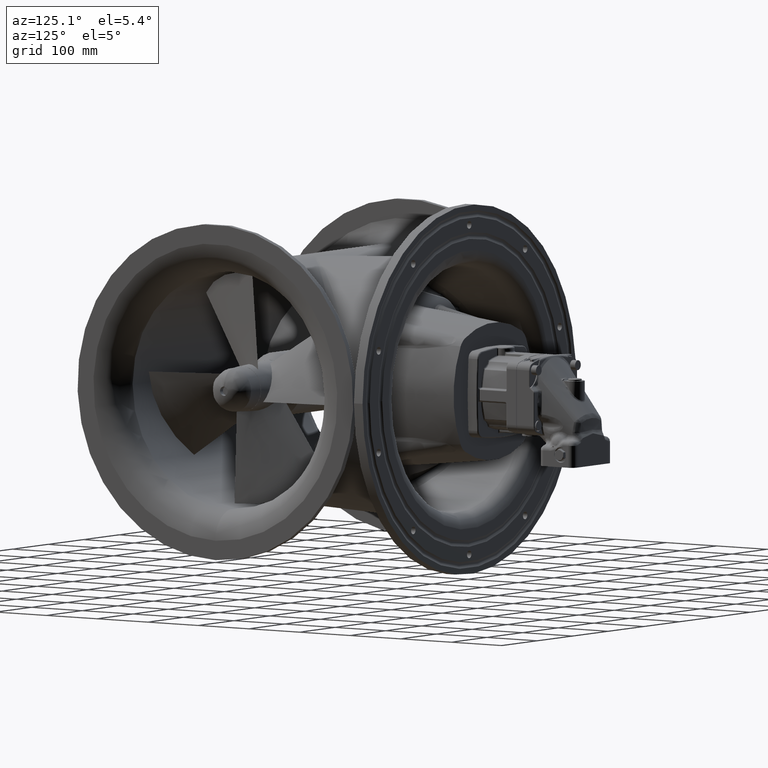
[diagram: clean part render]
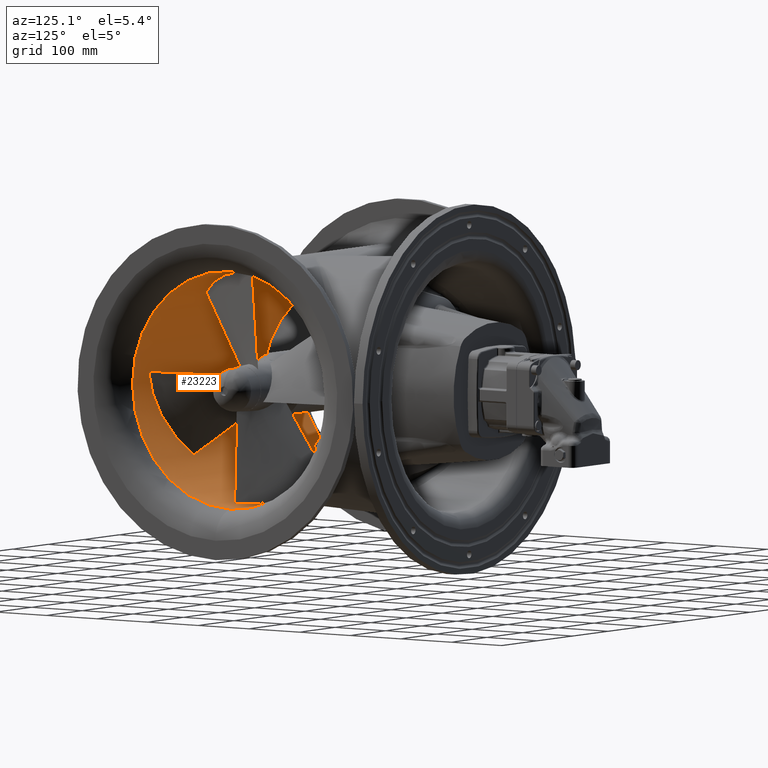
[diagram: same view with one face highlighted and labeled with its STEP entity id]
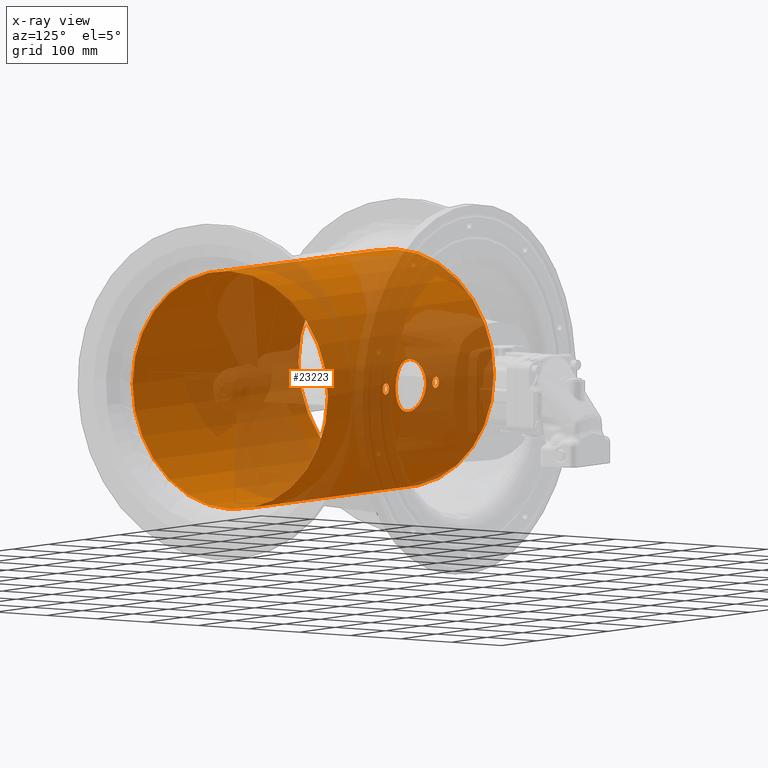
[diagram: x-ray of the same camera — body ghosted, the highlighted face saturated]
A machine part, auxiliary view. The second image highlights one B-rep face of the part: STEP entity #23223.
The next image is the same camera in x-ray: the body ghosted, the highlighted face saturated — about 55% of this face is hidden behind the body in this view.
In plain terms, the highlighted cylindrical surface (bore or boss wall) has radius 193 mm, axis along (1, 0, -0).
Its self-contained STEP definition (entity closure, byte-faithful):
#1314=CIRCLE('',#24668,193.);
#1315=CIRCLE('',#24669,193.);
#4619=FACE_BOUND('',#6252,.T.);
#4620=FACE_BOUND('',#6253,.T.);
#4621=FACE_BOUND('',#6254,.T.);
#4622=FACE_BOUND('',#6255,.T.);
#4799=FACE_OUTER_BOUND('',#6251,.T.);
#6251=EDGE_LOOP('',(#14808));
#6252=EDGE_LOOP('',(#14809));
#6253=EDGE_LOOP('',(#14810));
#6254=EDGE_LOOP('',(#14811));
#6255=EDGE_LOOP('',(#14812));
#7777=B_SPLINE_CURVE_WITH_KNOTS('',3,(#30942,#30943,#30944,#30945,#30946,
#30947,#30948,#30949,#30950,#30951,#30952,#30953,#30954,#30955,#30956,#30957,
#30958,#30959,#30960,#30961,#30962,#30963,#30964,#30965,#30966,#30967,#30968,
#30969,#30970,#30971,#30972,#30973,#30974,#30975,#30976,#30977,#30978,#30979,
#30980,#30981,#30982,#30983,#30984,#30985,#30986,#30987,#30988,#30989,#30990,
#30991,#30992,#30993,#30994,#30995,#30996,#30997,#30998,#30999,#31000,#31001,
#31002,#31003,#31004,#31005,#31006,#31007),.UNSPECIFIED.,.T.,.F.,(4,2,2,
2,2,2,2,2,2,2,2,2,2,2,2,2,2,2,2,2,2,2,2,2,2,2,2,2,2,2,2,2,4),(-25.7055913179414,
-24.9022582402887,-24.0989251626359,-23.2955920849832,-22.4922590073304,
-21.6889926276118,-20.8857262478932,-20.0824598681747,-19.2791934884561,
-18.4759271087375,-17.6726607290189,-16.8693943493003,-16.0661279695818,
-15.262794891929,-14.4594618142762,-13.6561287366235,-12.8527956589707,
-12.049462581318,-11.2461295036652,-10.4427964260124,-9.63946334835969,
-8.83619696864111,-8.03293058892253,-7.22966420920394,-6.42639782948536,
-5.62313144976678,-4.8198650700482,-4.01659869032962,-3.21333231061104,
-2.40999923295828,-1.60666615530552,-0.80333307765276,0.),.UNSPECIFIED.);
#7779=B_SPLINE_CURVE_WITH_KNOTS('',3,(#31085,#31086,#31087,#31088,#31089,
#31090,#31091,#31092,#31093,#31094,#31095,#31096,#31097,#31098,#31099,#31100,
#31101,#31102,#31103,#31104,#31105,#31106,#31107,#31108,#31109,#31110,#31111,
#31112,#31113,#31114,#31115,#31116,#31117,#31118),.UNSPECIFIED.,.T.,.F.,
(4,2,2,2,2,2,2,2,2,2,2,2,2,2,2,2,4),(-5.42513223136547,-5.08606143981724,
-4.746990648269,-4.40791991089655,-4.06884917352411,-3.72977843615166,-3.39070769877921,
-3.05163690723097,-2.71256611568274,-2.3734953241345,-2.03442453258627,
-1.69535379521382,-1.35628305784137,-1.01721232046892,-0.678141583096472,
-0.339070791548236,0.),.UNSPECIFIED.);
#7781=B_SPLINE_CURVE_WITH_KNOTS('',3,(#31172,#31173,#31174,#31175,#31176,
#31177,#31178,#31179,#31180,#31181,#31182,#31183,#31184,#31185,#31186,#31187,
#31188,#31189,#31190,#31191,#31192,#31193,#31194,#31195,#31196,#31197,#31198,
#31199,#31200,#31201,#31202,#31203,#31204,#31205),.UNSPECIFIED.,.T.,.F.,
(4,2,2,2,2,2,2,2,2,2,2,2,2,2,2,2,4),(-5.42513223136547,-5.08606143981724,
-4.746990648269,-4.40791991089655,-4.0688491735241,-3.72977843615166,-3.39070769877921,
-3.05163690723097,-2.71256611568273,-2.3734953241345,-2.03442453258626,
-1.69535379521382,-1.35628305784137,-1.01721232046892,-0.678141583096472,
-0.339070791548236,0.),.UNSPECIFIED.);
#9083=VERTEX_POINT('',#30941);
#9089=VERTEX_POINT('',#31084);
#9099=VERTEX_POINT('',#31171);
#9139=VERTEX_POINT('',#33053);
#9140=VERTEX_POINT('',#33055);
#11262=EDGE_CURVE('',#9083,#9083,#7777,.T.);
#11268=EDGE_CURVE('',#9089,#9089,#7779,.T.);
#11278=EDGE_CURVE('',#9099,#9099,#7781,.T.);
#11328=EDGE_CURVE('',#9139,#9139,#1314,.T.);
#11329=EDGE_CURVE('',#9140,#9140,#1315,.T.);
#14808=ORIENTED_EDGE('',*,*,#11328,.F.);
#14809=ORIENTED_EDGE('',*,*,#11262,.T.);
#14810=ORIENTED_EDGE('',*,*,#11268,.T.);
#14811=ORIENTED_EDGE('',*,*,#11278,.T.);
#14812=ORIENTED_EDGE('',*,*,#11329,.F.);
#21543=CYLINDRICAL_SURFACE('',#24667,193.);
#23223=ADVANCED_FACE('',(#4799,#4619,#4620,#4621,#4622),#21543,.F.);
#24667=AXIS2_PLACEMENT_3D('',#33052,#26377,#26378);
#24668=AXIS2_PLACEMENT_3D('',#33054,#26379,#26380);
#24669=AXIS2_PLACEMENT_3D('',#33056,#26381,#26382);
#26377=DIRECTION('center_axis',(1.,2.75075785414574E-15,-9.97823151778132E-16));
#26378=DIRECTION('ref_axis',(9.97823151778074E-16,2.09740053427586E-14,
1.));
#26379=DIRECTION('center_axis',(1.,2.75075785414574E-15,-9.97823151778132E-16));
#26380=DIRECTION('ref_axis',(9.97823151778074E-16,2.09740053427586E-14,
1.));
#26381=DIRECTION('center_axis',(-1.,-2.75075785414574E-15,9.97823151778132E-16));
#26382=DIRECTION('ref_axis',(9.97823151778074E-16,2.09740053427586E-14,
1.));
#30941=CARTESIAN_POINT('',(-619.546366145328,939.553945478175,328.588403940121));
#30942=CARTESIAN_POINT('Ctrl Pts',(-619.546366145328,939.553945478175,328.588403940121));
#30943=CARTESIAN_POINT('Ctrl Pts',(-616.868589219819,939.553945478175,328.588403940121));
#30944=CARTESIAN_POINT('Ctrl Pts',(-614.102275100437,939.612625477419,328.331248415781));
#30945=CARTESIAN_POINT('Ctrl Pts',(-608.605191336822,939.851616349016,327.251333023092));
#30946=CARTESIAN_POINT('Ctrl Pts',(-605.874361732409,940.031737914959,326.42883650021));
#30947=CARTESIAN_POINT('Ctrl Pts',(-600.641546121056,940.482794212036,324.257528184212));
#30948=CARTESIAN_POINT('Ctrl Pts',(-598.135224464312,940.753643162252,322.90699040238));
#30949=CARTESIAN_POINT('Ctrl Pts',(-593.502488344195,941.332943556501,319.789468114751));
#30950=CARTESIAN_POINT('Ctrl Pts',(-591.37614834929,941.640800695518,318.02226254494));
#30951=CARTESIAN_POINT('Ctrl Pts',(-587.612663781472,942.234049002433,314.258777977122));
#30952=CARTESIAN_POINT('Ctrl Pts',(-585.845475689229,942.540423836349,312.132510645058));
#30953=CARTESIAN_POINT('Ctrl Pts',(-582.727883446232,943.114338875342,307.49972906125));
#30954=CARTESIAN_POINT('Ctrl Pts',(-581.377265598838,943.38132002564,304.993289378095));
#30955=CARTESIAN_POINT('Ctrl Pts',(-579.20586845908,943.824547709456,299.760243097078));
#30956=CARTESIAN_POINT('Ctrl Pts',(-578.383363357496,944.000771281264,297.029304347796));
#30957=CARTESIAN_POINT('Ctrl Pts',(-577.303481724878,944.234319823351,291.532190865424));
#30958=CARTESIAN_POINT('Ctrl Pts',(-577.046366145328,944.291495690651,288.765958539183));
#30959=CARTESIAN_POINT('Ctrl Pts',(-577.046366145328,944.291495690651,283.410849341059));
#30960=CARTESIAN_POINT('Ctrl Pts',(-577.303481724878,944.234319823351,280.644617014818));
#30961=CARTESIAN_POINT('Ctrl Pts',(-578.383363357496,944.000771281264,275.147503532446));
#30962=CARTESIAN_POINT('Ctrl Pts',(-579.20586845908,943.824547709456,272.416564783164));
#30963=CARTESIAN_POINT('Ctrl Pts',(-581.377265598838,943.381320025639,267.183518502147));
#30964=CARTESIAN_POINT('Ctrl Pts',(-582.727883446232,943.114338875341,264.677078818992));
#30965=CARTESIAN_POINT('Ctrl Pts',(-585.845475689229,942.540423836348,260.044297235184));
#30966=CARTESIAN_POINT('Ctrl Pts',(-587.612663781472,942.234049002432,257.91802990312));
#30967=CARTESIAN_POINT('Ctrl Pts',(-591.37614834929,941.640800695517,254.154545335302));
#30968=CARTESIAN_POINT('Ctrl Pts',(-593.502488344195,941.3329435565,252.387339765491));
#30969=CARTESIAN_POINT('Ctrl Pts',(-598.135224464312,940.75364316225,249.269817477862));
#30970=CARTESIAN_POINT('Ctrl Pts',(-600.641546121056,940.482794212034,247.919279696031));
#30971=CARTESIAN_POINT('Ctrl Pts',(-605.874361732409,940.031737914957,245.747971380033));
#30972=CARTESIAN_POINT('Ctrl Pts',(-608.605191336822,939.851616349015,244.925474857151));
#30973=CARTESIAN_POINT('Ctrl Pts',(-614.102275100437,939.612625477417,243.845559464461));
#30974=CARTESIAN_POINT('Ctrl Pts',(-616.868589219819,939.553945478174,243.588403940121));
#30975=CARTESIAN_POINT('Ctrl Pts',(-622.224143070837,939.553945478174,243.588403940121));
#30976=CARTESIAN_POINT('Ctrl Pts',(-624.990457190219,939.612625477417,243.845559464461));
#30977=CARTESIAN_POINT('Ctrl Pts',(-630.487540953833,939.851616349015,244.925474857151));
#30978=CARTESIAN_POINT('Ctrl Pts',(-633.218370558246,940.031737914957,245.747971380033));
#30979=CARTESIAN_POINT('Ctrl Pts',(-638.451186169599,940.482794212034,247.919279696031));
#30980=CARTESIAN_POINT('Ctrl Pts',(-640.957507826344,940.75364316225,249.269817477862));
#30981=CARTESIAN_POINT('Ctrl Pts',(-645.590243946461,941.3329435565,252.387339765491));
#30982=CARTESIAN_POINT('Ctrl Pts',(-647.716583941366,941.640800695517,254.154545335302));
#30983=CARTESIAN_POINT('Ctrl Pts',(-651.480068509184,942.234049002431,257.91802990312));
#30984=CARTESIAN_POINT('Ctrl Pts',(-653.247256601427,942.540423836348,260.044297235184));
#30985=CARTESIAN_POINT('Ctrl Pts',(-656.364848844423,943.114338875341,264.677078818992));
#30986=CARTESIAN_POINT('Ctrl Pts',(-657.715466691818,943.381320025639,267.183518502147));
#30987=CARTESIAN_POINT('Ctrl Pts',(-659.886863831576,943.824547709456,272.416564783165));
#30988=CARTESIAN_POINT('Ctrl Pts',(-660.709368933159,944.000771281264,275.147503532446));
#30989=CARTESIAN_POINT('Ctrl Pts',(-661.789250565778,944.23431982335,280.644617014818));
#30990=CARTESIAN_POINT('Ctrl Pts',(-662.046366145328,944.29149569065,283.410849341059));
#30991=CARTESIAN_POINT('Ctrl Pts',(-662.046366145328,944.291495690651,288.765958539183));
#30992=CARTESIAN_POINT('Ctrl Pts',(-661.789250565778,944.234319823351,291.532190865424));
#30993=CARTESIAN_POINT('Ctrl Pts',(-660.709368933159,944.000771281264,297.029304347796));
#30994=CARTESIAN_POINT('Ctrl Pts',(-659.886863831576,943.824547709456,299.760243097078));
#30995=CARTESIAN_POINT('Ctrl Pts',(-657.715466691818,943.38132002564,304.993289378096));
#30996=CARTESIAN_POINT('Ctrl Pts',(-656.364848844423,943.114338875342,307.49972906125));
#30997=CARTESIAN_POINT('Ctrl Pts',(-653.247256601426,942.540423836349,312.132510645058));
#30998=CARTESIAN_POINT('Ctrl Pts',(-651.480068509184,942.234049002433,314.258777977122));
#30999=CARTESIAN_POINT('Ctrl Pts',(-647.716583941366,941.640800695518,318.02226254494));
#31000=CARTESIAN_POINT('Ctrl Pts',(-645.590243946461,941.332943556501,319.789468114751));
#31001=CARTESIAN_POINT('Ctrl Pts',(-640.957507826344,940.753643162252,322.90699040238));
#31002=CARTESIAN_POINT('Ctrl Pts',(-638.451186169599,940.482794212035,324.257528184212));
#31003=CARTESIAN_POINT('Ctrl Pts',(-633.218370558246,940.031737914959,326.42883650021));
#31004=CARTESIAN_POINT('Ctrl Pts',(-630.487540953833,939.851616349016,327.251333023092));
#31005=CARTESIAN_POINT('Ctrl Pts',(-624.990457190219,939.612625477419,328.331248415781));
#31006=CARTESIAN_POINT('Ctrl Pts',(-622.224143070837,939.553945478175,328.588403940121));
#31007=CARTESIAN_POINT('Ctrl Pts',(-619.546366145328,939.553945478175,328.588403940121));
#31084=CARTESIAN_POINT('',(-549.546366145328,944.081536927225,295.088403940121));
#31085=CARTESIAN_POINT('Ctrl Pts',(-549.546366145328,944.081536927225,295.088403940121));
#31086=CARTESIAN_POINT('Ctrl Pts',(-548.4161301735,944.081536927225,295.088403940121));
#31087=CARTESIAN_POINT('Ctrl Pts',(-547.210670526576,944.092498512202,294.86249246647));
#31088=CARTESIAN_POINT('Ctrl Pts',(-544.993305006723,944.132107544775,293.943958534957));
#31089=CARTESIAN_POINT('Ctrl Pts',(-543.981385249569,944.160185057158,293.25134510572));
#31090=CARTESIAN_POINT('Ctrl Pts',(-542.383425107388,944.212904689499,291.653384963539));
#31091=CARTESIAN_POINT('Ctrl Pts',(-541.690811583726,944.240968877089,290.641465147678));
#31092=CARTESIAN_POINT('Ctrl Pts',(-540.772277567085,944.280547441746,288.424099444877));
#31093=CARTESIAN_POINT('Ctrl Pts',(-540.546366145328,944.291495690651,287.218639731362));
#31094=CARTESIAN_POINT('Ctrl Pts',(-540.546366145328,944.291495690651,284.95816814888));
#31095=CARTESIAN_POINT('Ctrl Pts',(-540.772277567085,944.280547441746,283.752708435365));
#31096=CARTESIAN_POINT('Ctrl Pts',(-541.690811583726,944.240968877088,281.535342732564));
#31097=CARTESIAN_POINT('Ctrl Pts',(-542.383425107388,944.212904689499,280.523422916703));
#31098=CARTESIAN_POINT('Ctrl Pts',(-543.981385249569,944.160185057158,278.925462774522));
#31099=CARTESIAN_POINT('Ctrl Pts',(-544.993305006723,944.132107544775,278.232849345285));
#31100=CARTESIAN_POINT('Ctrl Pts',(-547.210670526576,944.092498512202,277.314315413772));
#31101=CARTESIAN_POINT('Ctrl Pts',(-548.4161301735,944.081536927225,277.088403940121));
#31102=CARTESIAN_POINT('Ctrl Pts',(-550.676602117155,944.081536927225,277.088403940121));
#31103=CARTESIAN_POINT('Ctrl Pts',(-551.88206176408,944.092498512202,277.314315413772));
#31104=CARTESIAN_POINT('Ctrl Pts',(-554.099427283933,944.132107544775,278.232849345285));
#31105=CARTESIAN_POINT('Ctrl Pts',(-555.111347041087,944.160185057158,278.925462774522));
#31106=CARTESIAN_POINT('Ctrl Pts',(-556.709307183268,944.212904689499,280.523422916703));
#31107=CARTESIAN_POINT('Ctrl Pts',(-557.401920706929,944.240968877088,281.535342732564));
#31108=CARTESIAN_POINT('Ctrl Pts',(-558.32045472357,944.280547441746,283.752708435365));
#31109=CARTESIAN_POINT('Ctrl Pts',(-558.546366145328,944.291495690651,284.95816814888));
#31110=CARTESIAN_POINT('Ctrl Pts',(-558.546366145328,944.291495690651,287.218639731362));
#31111=CARTESIAN_POINT('Ctrl Pts',(-558.32045472357,944.280547441746,288.424099444877));
#31112=CARTESIAN_POINT('Ctrl Pts',(-557.401920706929,944.240968877088,290.641465147678));
#31113=CARTESIAN_POINT('Ctrl Pts',(-556.709307183268,944.212904689499,291.653384963539));
#31114=CARTESIAN_POINT('Ctrl Pts',(-555.111347041087,944.160185057158,293.25134510572));
#31115=CARTESIAN_POINT('Ctrl Pts',(-554.099427283933,944.132107544775,293.943958534957));
#31116=CARTESIAN_POINT('Ctrl Pts',(-551.88206176408,944.092498512202,294.86249246647));
#31117=CARTESIAN_POINT('Ctrl Pts',(-550.676602117155,944.081536927225,295.088403940121));
#31118=CARTESIAN_POINT('Ctrl Pts',(-549.546366145328,944.081536927225,295.088403940121));
#31171=CARTESIAN_POINT('',(-689.546366145328,944.081536927225,295.088403940121));
#31172=CARTESIAN_POINT('Ctrl Pts',(-689.546366145328,944.081536927225,295.088403940121));
#31173=CARTESIAN_POINT('Ctrl Pts',(-688.4161301735,944.081536927225,295.088403940121));
#31174=CARTESIAN_POINT('Ctrl Pts',(-687.210670526576,944.092498512202,294.86249246647));
#31175=CARTESIAN_POINT('Ctrl Pts',(-684.993305006723,944.132107544775,293.943958534957));
#31176=CARTESIAN_POINT('Ctrl Pts',(-683.981385249569,944.160185057158,293.25134510572));
#31177=CARTESIAN_POINT('Ctrl Pts',(-682.383425107388,944.212904689499,291.653384963539));
#31178=CARTESIAN_POINT('Ctrl Pts',(-681.690811583726,944.240968877088,290.641465147678));
#31179=CARTESIAN_POINT('Ctrl Pts',(-680.772277567085,944.280547441746,288.424099444877));
#31180=CARTESIAN_POINT('Ctrl Pts',(-680.546366145328,944.29149569065,287.218639731363));
#31181=CARTESIAN_POINT('Ctrl Pts',(-680.546366145328,944.29149569065,284.95816814888));
#31182=CARTESIAN_POINT('Ctrl Pts',(-680.772277567085,944.280547441746,283.752708435365));
#31183=CARTESIAN_POINT('Ctrl Pts',(-681.690811583726,944.240968877088,281.535342732564));
#31184=CARTESIAN_POINT('Ctrl Pts',(-682.383425107388,944.212904689498,280.523422916703));
#31185=CARTESIAN_POINT('Ctrl Pts',(-683.981385249569,944.160185057157,278.925462774522));
#31186=CARTESIAN_POINT('Ctrl Pts',(-684.993305006723,944.132107544775,278.232849345285));
#31187=CARTESIAN_POINT('Ctrl Pts',(-687.210670526576,944.092498512201,277.314315413773));
#31188=CARTESIAN_POINT('Ctrl Pts',(-688.4161301735,944.081536927225,277.088403940121));
#31189=CARTESIAN_POINT('Ctrl Pts',(-690.676602117155,944.081536927225,277.088403940121));
#31190=CARTESIAN_POINT('Ctrl Pts',(-691.88206176408,944.092498512201,277.314315413773));
#31191=CARTESIAN_POINT('Ctrl Pts',(-694.099427283933,944.132107544775,278.232849345285));
#31192=CARTESIAN_POINT('Ctrl Pts',(-695.111347041087,944.160185057157,278.925462774522));
#31193=CARTESIAN_POINT('Ctrl Pts',(-696.709307183268,944.212904689498,280.523422916703));
#31194=CARTESIAN_POINT('Ctrl Pts',(-697.401920706929,944.240968877088,281.535342732564));
#31195=CARTESIAN_POINT('Ctrl Pts',(-698.32045472357,944.280547441746,283.752708435365));
#31196=CARTESIAN_POINT('Ctrl Pts',(-698.546366145328,944.29149569065,284.95816814888));
#31197=CARTESIAN_POINT('Ctrl Pts',(-698.546366145328,944.29149569065,287.218639731363));
#31198=CARTESIAN_POINT('Ctrl Pts',(-698.32045472357,944.280547441746,288.424099444877));
#31199=CARTESIAN_POINT('Ctrl Pts',(-697.401920706929,944.240968877088,290.641465147678));
#31200=CARTESIAN_POINT('Ctrl Pts',(-696.709307183268,944.212904689498,291.653384963539));
#31201=CARTESIAN_POINT('Ctrl Pts',(-695.111347041087,944.160185057158,293.25134510572));
#31202=CARTESIAN_POINT('Ctrl Pts',(-694.099427283933,944.132107544775,293.943958534957));
#31203=CARTESIAN_POINT('Ctrl Pts',(-691.88206176408,944.092498512202,294.86249246647));
#31204=CARTESIAN_POINT('Ctrl Pts',(-690.676602117155,944.081536927225,295.088403940121));
#31205=CARTESIAN_POINT('Ctrl Pts',(-689.546366145328,944.081536927225,295.088403940121));
#33052=CARTESIAN_POINT('Origin',(-619.546366145327,751.291495690651,286.088403940125));
#33053=CARTESIAN_POINT('',(-852.899782571805,751.291495690646,93.0884039401253));
#33054=CARTESIAN_POINT('Origin',(-852.899782571804,751.29149569065,286.088403940125));
#33055=CARTESIAN_POINT('',(-386.19294971885,751.291495690647,93.0884039401248));
#33056=CARTESIAN_POINT('Origin',(-386.19294971885,751.291495690651,286.088403940125));